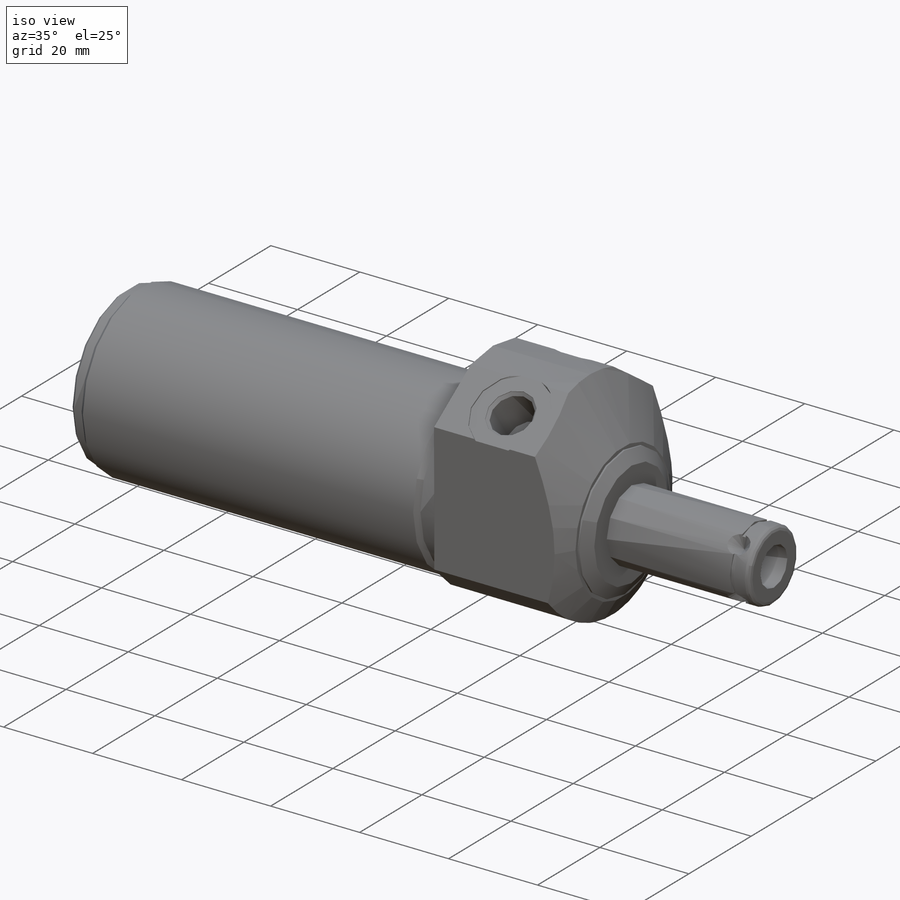
[diagram: iso view]
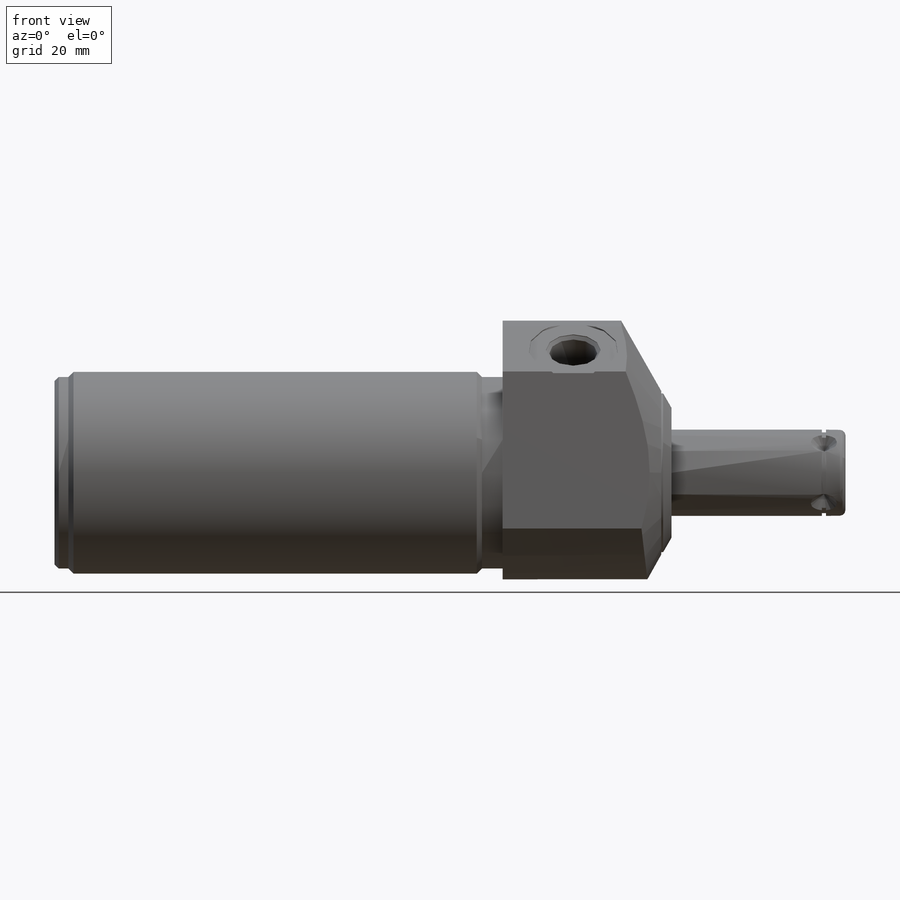
[diagram: front view]
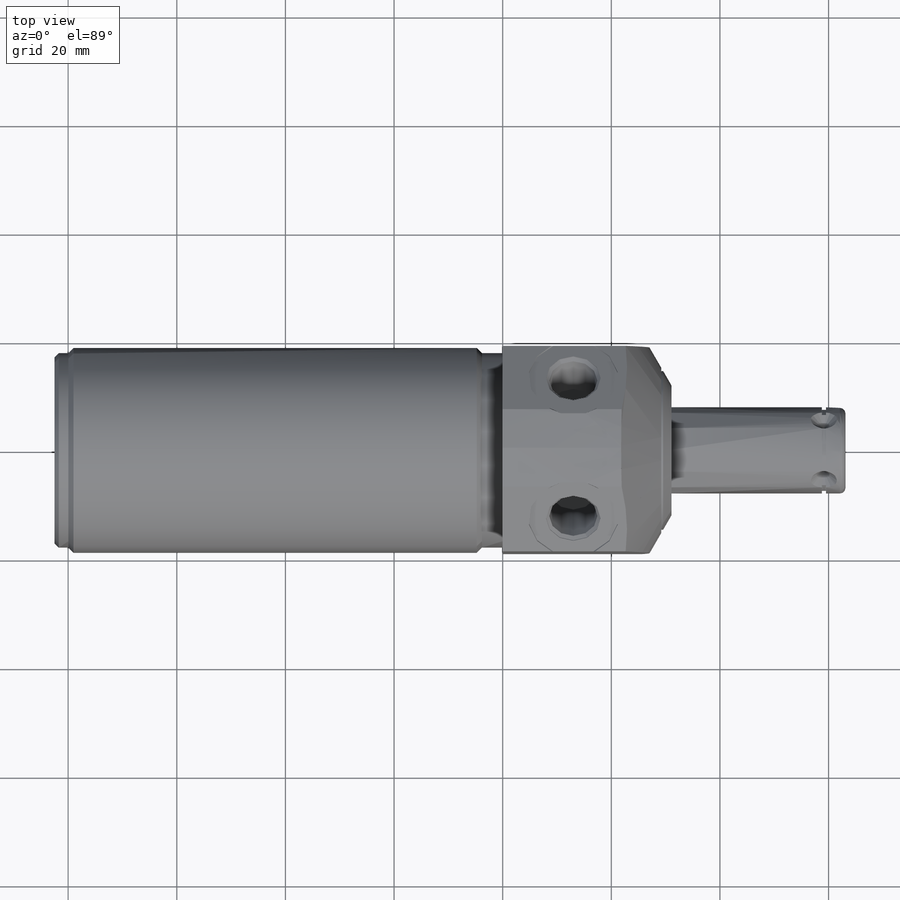
[diagram: top view]
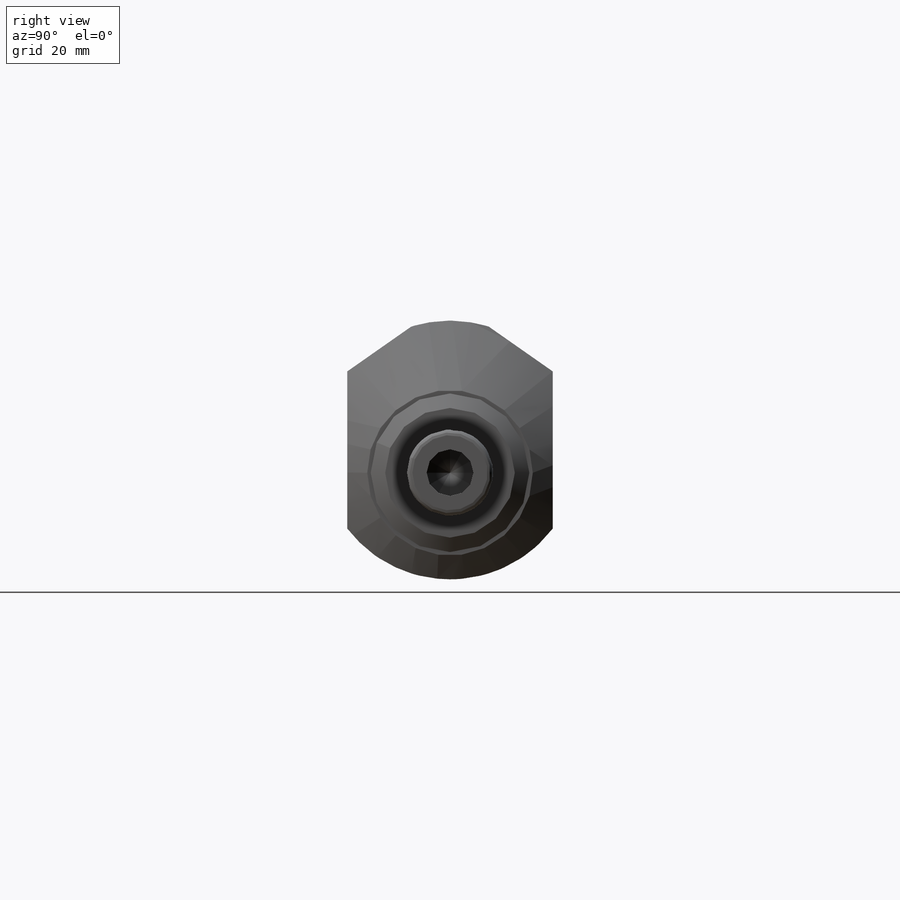
[diagram: right view]
SOLIDWORKS PART (.sldprt)
format: sldprt  version: not decoded by parser v0  size: 351,232 bytes
history: native  units: mm
features: sketch x11, cut_revolve x7, cut_extrude x2, plane x2, material x1, extrude x1, mirror x1, chamfer x1, revolve x1, pattern_circular x1 (+13 scaffold rows collapsed)
feature tree (41):
  scaffold x13  (default folders/planes/origin — collapsed)
  material  "Alloy Steel"
  sketch  "Sketch1"  dims[D1=50.8mm]
  extrude  "Extrude1"  Depth=31.0896mm
  sketch  "Sketch2"  dims[D1=37.719mm D2=4.191mm]
  cut_extrude  "Cut-Extrude1"  [1 undecoded]
  sketch  "Sketch4"  dims[c1.D4=23.8125mm c1.D1=37.846mm c1.D2=14.2875mm c2.D2=55.0deg c2.D3=26.1366mm]
  cut_extrude  "Cut-Extrude3"  [1 undecoded]
  sketch  "Sketch6"  dims[c1.D1=23.876mm c1.D2=34.8488mm c2.D2=25.0deg c2.D3=29.21mm c2.D4=29.2354mm c3.D2=75.0mm c3.D5=29.499mm c4.D5=30.0deg c4.D4=1.905mm]
  cut_revolve  "Cut-Revolve2"  Angle=360deg
  plane  "Plane17"  Offset=95.504mm
  sketch  "S2D0002"  dims[c1.D1=16.51mm c1.D2=0.254mm c1.D3=0.127mm c1.D4=10.033mm c1.D5=~0.922331mm c2.D5=147.0deg c3.D5=12.192mm c4.D5=45.0deg c4.D6=8.8392mm c4.D7=9.398mm c4.D8=2.413mm]
  cut_revolve  "Cut-Revolve3"  Angle=360deg
  mirror  "Mirror1"
  sketch  "Sketch10"  dims[c1.D1=35.814mm c1.D2=3.81mm c1.D3=1.0414mm c2.D3=45.0deg]
  cut_revolve  "Cut-Revolve6"  Angle=360deg
  sketch  "Sketch12"  dims[c1.D1=35.814mm c1.D2=2.54mm c1.D3=1.0414mm c2.D3=45.0deg]
  cut_revolve  "Cut-Revolve8"  Angle=360deg
  chamfer  "Chamfer1"  Distance=0.762mm Angle=45deg
  sketch  "Sketch13"  dims[c1.D2=1.016mm c1.D1=20.2692mm c1.D3=15.875mm c2.D1=63.106mm]
  revolve  "Revolve1"  Angle=360deg
  plane  "Plane18"
  sketch  "S2D0001"  dims[c1.D1=8.6106mm c1.D2=2.8067mm c2.D2=59.0deg c2.D3=10.16mm c3.D2=15.24mm c3.D3=2.5273mm c4.D3=59.0deg]
  cut_revolve  "Cut-Revolve9"  Angle=360deg
  sketch  "Sketch16"  dims[c1.D1=3.9624mm c1.D2=4.826mm c1.D3=~2.245064mm c2.D3=45.0deg]
  cut_revolve  "Cut-Revolve10"  Angle=360deg
  pattern_circular  "CirPattern1"  Count=4 Angle=360deg
  sketch  "Sketch21"  dims[D1=0.381mm D2=0.762mm D3=3.5814mm D4=7.9375mm]
  cut_revolve  "Cut-Revolve11"  Angle=360deg
decode coverage: 22 of 25 modeling features carry decoded parameters
note: ~ marks probable driven/reference dimensions
note: 2 parameter values undecoded
note: suppression state not decoded; provenance and decode notes live in map.json
